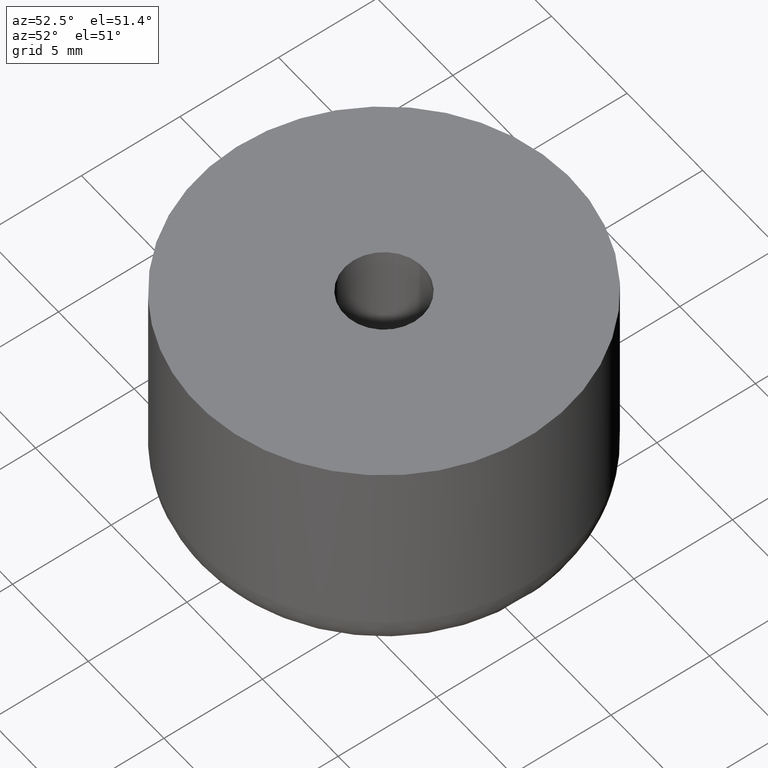
[diagram: clean part render]
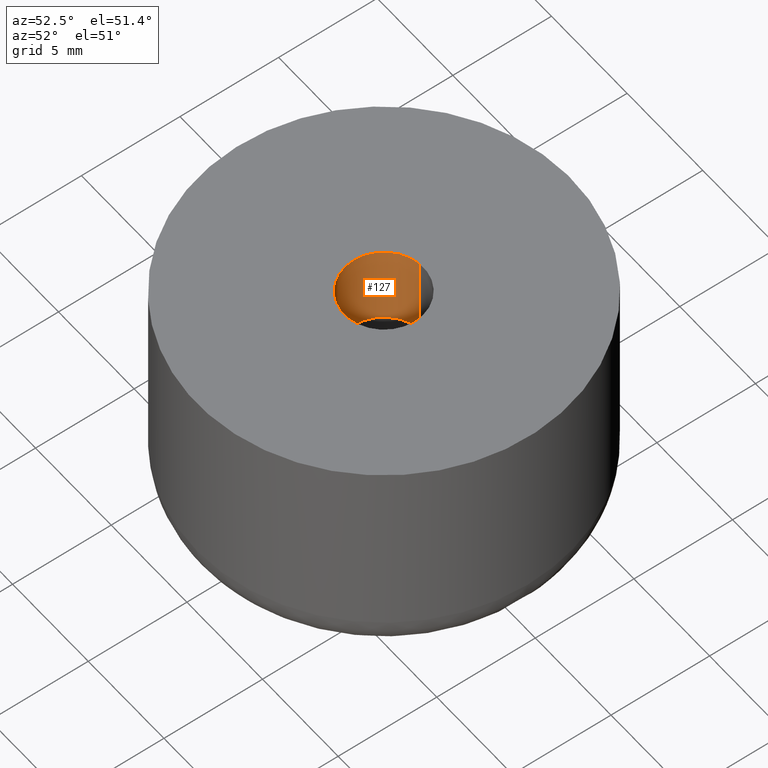
[diagram: same view with one face highlighted and labeled with its STEP entity id]
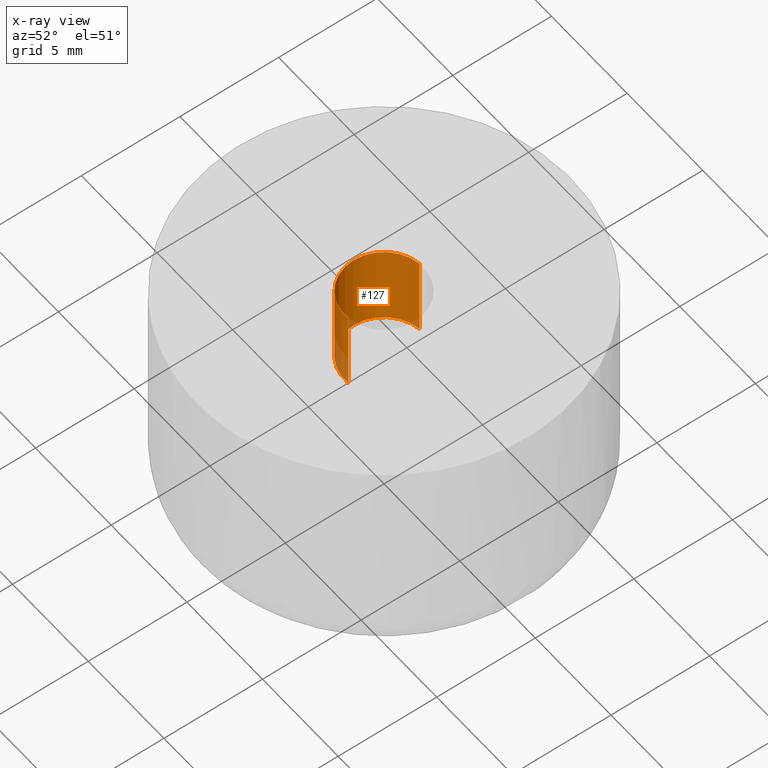
[diagram: x-ray of the same camera — body ghosted, the highlighted face saturated]
A machine part, auxiliary view. The second image highlights one B-rep face of the part: STEP entity #127.
The next image is the same camera in x-ray: the body ghosted, the highlighted face saturated — about 7% of this face is hidden behind the body in this view.
In plain terms, the highlighted cylindrical surface (partial cylindrical patch) has radius 2 mm, axis along (0, 0, 1).
Its self-contained STEP definition (entity closure, byte-faithful):
#127=ADVANCED_FACE('',(#289),#288,.F.);
#288=CYLINDRICAL_SURFACE('',#422,2.00000000000E+000);
#289=FACE_OUTER_BOUND('',#423,.T.);
#419=CARTESIAN_POINT('',(-6.57521130764E-013,-6.03806158571E-014,1.20000000000E+001));
#420=DIRECTION('',(5.57827123169E-015,1.55748823104E-015,1.00000000000E+000));
#421=DIRECTION('',(1.18033411424E-001,-9.93009624217E-001,8.88178419700E-016));
#422=AXIS2_PLACEMENT_3D('',#419,#420,#421);
#423=EDGE_LOOP('',(#566,#567,#568,#569,#570,#571));
#566=ORIENTED_EDGE('',*,*,#627,.F.);
#567=ORIENTED_EDGE('',*,*,#629,.F.);
#568=ORIENTED_EDGE('',*,*,#646,.F.);
#569=ORIENTED_EDGE('',*,*,#639,.T.);
#570=ORIENTED_EDGE('',*,*,#641,.T.);
#571=ORIENTED_EDGE('',*,*,#647,.T.);
#627=EDGE_CURVE('',#831,#832,#833,.T.);
#629=EDGE_CURVE('',#839,#831,#846,.T.);
#639=EDGE_CURVE('',#915,#916,#917,.T.);
#641=EDGE_CURVE('',#916,#923,#930,.T.);
#646=EDGE_CURVE('',#915,#839,#960,.T.);
#647=EDGE_CURVE('',#923,#832,#966,.T.);
#831=VERTEX_POINT('',#1165);
#832=VERTEX_POINT('',#1166);
#833=CIRCLE('',#1170,2.00000000000E+000);
#839=VERTEX_POINT('',#1171);
#846=CIRCLE('',#1179,2.00000000000E+000);
#915=VERTEX_POINT('',#1225);
#916=VERTEX_POINT('',#1226);
#917=CIRCLE('',#1230,2.00000000000E+000);
#923=VERTEX_POINT('',#1231);
#930=CIRCLE('',#1239,2.00000000000E+000);
#960=(BOUNDED_CURVE() B_SPLINE_CURVE(1,(#1248,#1249),.UNSPECIFIED.,.F.,.F.) B_SPLINE_CURVE_WITH_KNOTS((2,2),(8.33333313467E-002,9.16666670832E-001),.UNSPECIFIED.) CURVE() GEOMETRIC_REPRESENTATION_ITEM() RATIONAL_B_SPLINE_CURVE((1.00000000000E+000,1.00000000000E+000)) REPRESENTATION_ITEM('') );
#966=(BOUNDED_CURVE() B_SPLINE_CURVE(1,(#1250,#1251),.UNSPECIFIED.,.F.,.F.) B_SPLINE_CURVE_WITH_KNOTS((2,2),(8.33333333335E-002,9.16666666667E-001),.UNSPECIFIED.) CURVE() GEOMETRIC_REPRESENTATION_ITEM() RATIONAL_B_SPLINE_CURVE((7.50000000000E-001,7.50000000000E-001)) REPRESENTATION_ITEM('') );
#1165=CARTESIAN_POINT('',(-1.99999999999E+000,-2.44921272664E-016,1.20000000000E+001));
#1166=CARTESIAN_POINT('',(-2.36410144329E-001,1.98597840966E+000,1.20000000000E+001));
#1167=CARTESIAN_POINT('',(3.49453799231E-012,-5.43565192856E-013,1.20000000000E+001));
#1168=DIRECTION('',(-3.55271367881E-015,3.14018491737E-016,-1.00000000000E+000));
#1169=DIRECTION('',(-1.00000000000E+000,2.71782596428E-013,3.55271367881E-015));
#1170=AXIS2_PLACEMENT_3D('',#1167,#1168,#1169);
#1171=CARTESIAN_POINT('',(2.36066096548E-001,-1.98601933476E+000,1.20000000000E+001));
#1176=CARTESIAN_POINT('',(3.49453799231E-012,-5.43565192856E-013,1.20000000000E+001));
#1177=DIRECTION('',(-3.55271367881E-015,3.14018491737E-016,-1.00000000000E+000));
#1178=DIRECTION('',(-1.00000000000E+000,2.71782596428E-013,3.55271367881E-015));
#1179=AXIS2_PLACEMENT_3D('',#1176,#1177,#1178);
#1225=CARTESIAN_POINT('',(2.36066096547E-001,-1.98601933476E+000,7.80000000000E+000));
#1226=CARTESIAN_POINT('',(-1.99999999999E+000,-4.16333634234E-016,7.80000000000E+000));
#1227=CARTESIAN_POINT('',(4.30511182259E-012,1.95710114781E-012,7.80000000000E+000));
#1228=DIRECTION('',(2.78345441564E-013,4.20294041329E-014,-1.00000000000E+000));
#1229=DIRECTION('',(-1.00000000000E+000,-9.78397918239E-013,-2.78345441564E-013));
#1230=AXIS2_PLACEMENT_3D('',#1227,#1228,#1229);
#1231=CARTESIAN_POINT('',(-2.36410144330E-001,1.98597840966E+000,7.80000000000E+000));
#1236=CARTESIAN_POINT('',(4.30511182259E-012,1.95710114781E-012,7.80000000000E+000));
#1237=DIRECTION('',(2.78345441564E-013,4.20294041329E-014,-1.00000000000E+000));
#1238=DIRECTION('',(-1.00000000000E+000,-9.78397918239E-013,-2.78345441564E-013));
#1239=AXIS2_PLACEMENT_3D('',#1236,#1237,#1238);
#1248=CARTESIAN_POINT('',(2.36066822847E-001,-1.98601924843E+000,7.79999998999E+000));
#1249=CARTESIAN_POINT('',(2.36066822847E-001,-1.98601924843E+000,1.20000000210E+001));
#1250=CARTESIAN_POINT('',(-2.36066822848E-001,1.98601924843E+000,7.80000000000E+000));
#1251=CARTESIAN_POINT('',(-2.36066822848E-001,1.98601924843E+000,1.20000000000E+001));